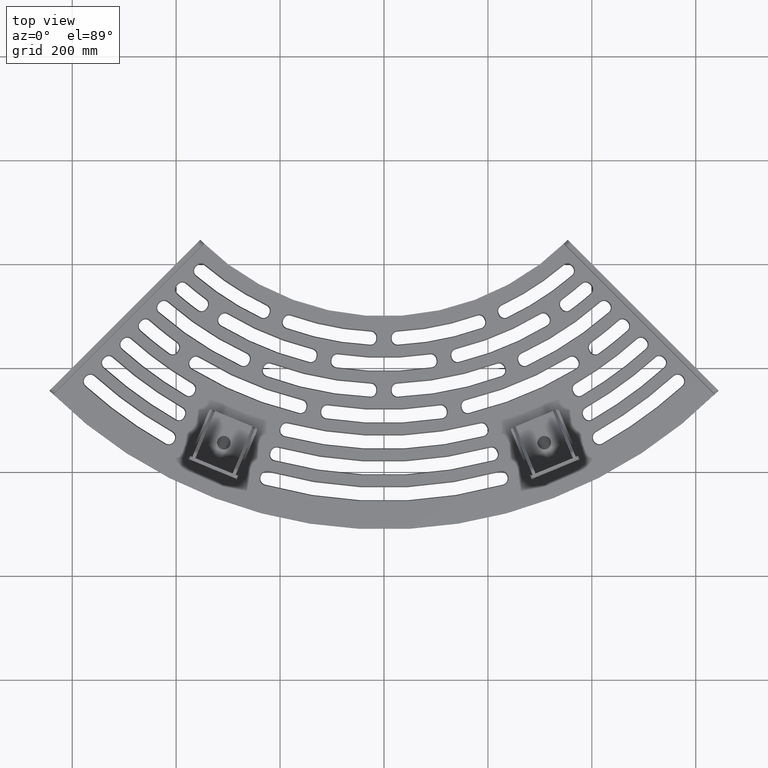
[diagram: clean part render]
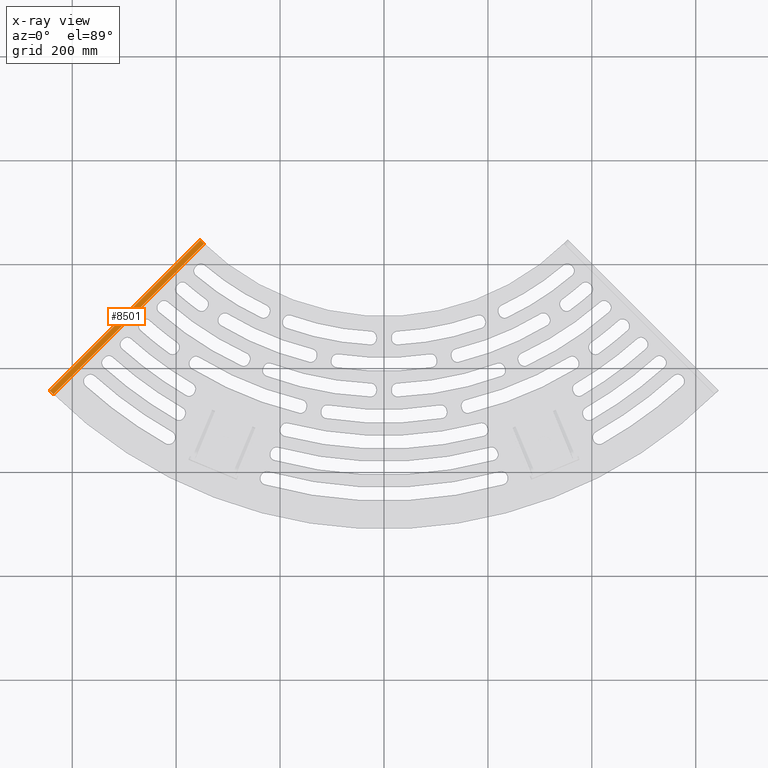
[diagram: x-ray — body ghosted, one internal face saturated and labeled with its STEP entity id]
A machine part, top view, then the same camera in x-ray: the body is ghosted and one INTERNAL B-rep face — a face not visible from any outside direction — is saturated and labeled: STEP entity #8501.
In plain terms, the highlighted planar face has unit normal (-0, -0, -1).
Its self-contained STEP definition (entity closure, byte-faithful):
#100 = VECTOR ( 'NONE', #2066, 1000.000000000000000 ) ;
#109 = CARTESIAN_POINT ( 'NONE',  ( -204.9999999999996305, -25.00000000000000000, 3.885985427338354237E-13 ) ) ;
#1048 = CARTESIAN_POINT ( 'NONE',  ( 205.0000000000022453, -25.00000000000000000, 2.220650890400619679E-13 ) ) ;
#1085 = VECTOR ( 'NONE', #6376, 1000.000000000000000 ) ;
#1151 = EDGE_CURVE ( 'NONE', #2983, #8675, #3119, .T. ) ;
#1298 = ORIENTED_EDGE ( 'NONE', *, *, #9286, .F. ) ;
#1550 = ORIENTED_EDGE ( 'NONE', *, *, #1821, .F. ) ;
#1609 = ORIENTED_EDGE ( 'NONE', *, *, #1151, .T. ) ;
#1821 = EDGE_CURVE ( 'NONE', #2624, #10491, #4404, .T. ) ;
#2066 = DIRECTION ( 'NONE',  ( 1.540961891649139084E-35, -4.342972024593210827E-32, 1.000000000000000000 ) ) ;
#2258 = PLANE ( 'NONE',  #2443 ) ;
#2345 = CARTESIAN_POINT ( 'NONE',  ( -204.9999999999996305, -25.00000000000000000, 3.885985427338354237E-13 ) ) ;
#2443 = AXIS2_PLACEMENT_3D ( 'NONE', #6039, #9841, #8901 ) ;
#2624 = VERTEX_POINT ( 'NONE', #8632 ) ;
#2983 = VERTEX_POINT ( 'NONE', #7176 ) ;
#3119 = LINE ( 'NONE', #10570, #100 ) ;
#4404 = LINE ( 'NONE', #4656, #1085 ) ;
#4406 = ORIENTED_EDGE ( 'NONE', *, *, #6428, .T. ) ;
#4656 = CARTESIAN_POINT ( 'NONE',  ( -204.9999999999996305, -25.00000000000000000, -10.00000000000000888 ) ) ;
#4830 = LINE ( 'NONE', #109, #7220 ) ;
#4913 = LINE ( 'NONE', #11539, #10179 ) ;
#5020 = EDGE_LOOP ( 'NONE', ( #1298, #1550, #4406, #1609 ) ) ;
#6039 = CARTESIAN_POINT ( 'NONE',  ( -204.9999999999996305, -25.00000000000000000, -10.00000000000000888 ) ) ;
#6376 = DIRECTION ( 'NONE',  ( 1.540961891649139084E-35, -4.342972024593210827E-32, 1.000000000000000000 ) ) ;
#6428 = EDGE_CURVE ( 'NONE', #2624, #2983, #4913, .T. ) ;
#7176 = CARTESIAN_POINT ( 'NONE',  ( 205.0000000000017337, -25.00000000000000000, -9.999999999999925393 ) ) ;
#7220 = VECTOR ( 'NONE', #7682, 1000.000000000000000 ) ;
#7682 = DIRECTION ( 'NONE',  ( 1.000000000000000000, 2.773339119917615797E-32, 1.540961891649054357E-35 ) ) ;
#8236 = DIRECTION ( 'NONE',  ( 1.000000000000000000, 2.773339119917615797E-32, 1.540961891649054357E-35 ) ) ;
#8501 = ADVANCED_FACE ( 'NONE', ( #8668 ), #2258, .T. ) ;
#8632 = CARTESIAN_POINT ( 'NONE',  ( -204.9999999999996305, -25.00000000000000000, -10.00000000000000888 ) ) ;
#8668 = FACE_OUTER_BOUND ( 'NONE', #5020, .T. ) ;
#8675 = VERTEX_POINT ( 'NONE', #1048 ) ;
#8901 = DIRECTION ( 'NONE',  ( -1.540961891649139084E-35, 4.342972024593210827E-32, -1.000000000000000000 ) ) ;
#9286 = EDGE_CURVE ( 'NONE', #10491, #8675, #4830, .T. ) ;
#9841 = DIRECTION ( 'NONE',  ( -1.848892746611746419E-32, -1.000000000000000000, -4.342972024593210827E-32 ) ) ;
#10179 = VECTOR ( 'NONE', #8236, 1000.000000000000000 ) ;
#10491 = VERTEX_POINT ( 'NONE', #2345 ) ;
#10570 = CARTESIAN_POINT ( 'NONE',  ( 205.0000000000017337, -25.00000000000000000, -9.999999999999925393 ) ) ;
#11539 = CARTESIAN_POINT ( 'NONE',  ( -204.9999999999996305, -25.00000000000000000, -10.00000000000000888 ) ) ;